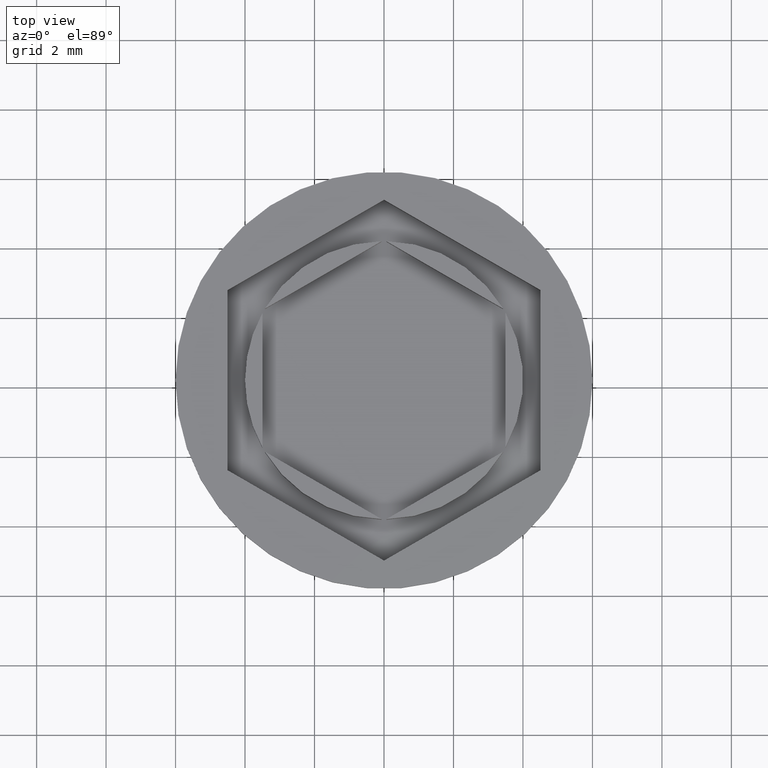
[diagram: clean part render]
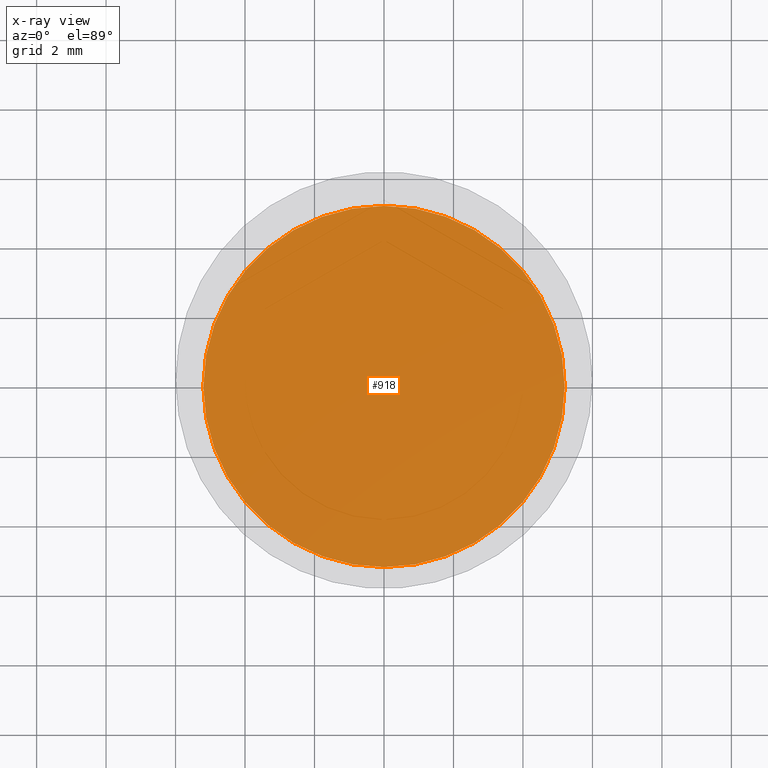
[diagram: x-ray — body ghosted, one internal face saturated and labeled with its STEP entity id]
A machine part, top view, then the same camera in x-ray: the body is ghosted and one INTERNAL B-rep face — a face not visible from any outside direction — is saturated and labeled: STEP entity #918.
In plain terms, the highlighted planar face has unit normal (0, 0, -1).
Its self-contained STEP definition (entity closure, byte-faithful):
#193 = DIRECTION ( 'NONE',  ( -1.000000000000000000, 0.000000000000000000, -0.000000000000000000 ) ) ;
#205 = FACE_OUTER_BOUND ( 'NONE', #1136, .T. ) ;
#225 = DIRECTION ( 'NONE',  ( 0.000000000000000000, 0.000000000000000000, -1.000000000000000000 ) ) ;
#230 = CIRCLE ( 'NONE', #1712, 5.200000000000001066 ) ;
#271 = EDGE_CURVE ( 'NONE', #1488, #935, #1094, .T. ) ;
#393 = AXIS2_PLACEMENT_3D ( 'NONE', #1589, #225, #193 ) ;
#629 = DIRECTION ( 'NONE',  ( -0.000000000000000000, -0.000000000000000000, 1.000000000000000000 ) ) ;
#657 = CARTESIAN_POINT ( 'NONE',  ( 0.000000000000000000, 0.000000000000000000, -10.50000000000000178 ) ) ;
#662 = ORIENTED_EDGE ( 'NONE', *, *, #1206, .T. ) ;
#691 = CARTESIAN_POINT ( 'NONE',  ( 5.200000000000001066, 6.551860375438340681E-16, -10.50000000000000178 ) ) ;
#750 = ORIENTED_EDGE ( 'NONE', *, *, #271, .T. ) ;
#759 = AXIS2_PLACEMENT_3D ( 'NONE', #657, #1542, #1580 ) ;
#766 = CARTESIAN_POINT ( 'NONE',  ( 0.000000000000000000, 0.000000000000000000, -10.50000000000000178 ) ) ;
#918 = ADVANCED_FACE ( 'NONE', ( #205 ), #1755, .F. ) ;
#935 = VERTEX_POINT ( 'NONE', #691 ) ;
#1012 = CARTESIAN_POINT ( 'NONE',  ( -5.200000000000001066, 0.000000000000000000, -10.50000000000000178 ) ) ;
#1094 = CIRCLE ( 'NONE', #759, 5.200000000000001066 ) ;
#1136 = EDGE_LOOP ( 'NONE', ( #750, #662 ) ) ;
#1206 = EDGE_CURVE ( 'NONE', #935, #1488, #230, .T. ) ;
#1488 = VERTEX_POINT ( 'NONE', #1012 ) ;
#1542 = DIRECTION ( 'NONE',  ( -0.000000000000000000, -0.000000000000000000, 1.000000000000000000 ) ) ;
#1580 = DIRECTION ( 'NONE',  ( -1.000000000000000000, 0.000000000000000000, 0.000000000000000000 ) ) ;
#1589 = CARTESIAN_POINT ( 'NONE',  ( 0.000000000000000000, 0.000000000000000000, -10.50000000000000178 ) ) ;
#1675 = DIRECTION ( 'NONE',  ( -1.000000000000000000, 0.000000000000000000, 0.000000000000000000 ) ) ;
#1712 = AXIS2_PLACEMENT_3D ( 'NONE', #766, #629, #1675 ) ;
#1755 = PLANE ( 'NONE',  #393 ) ;